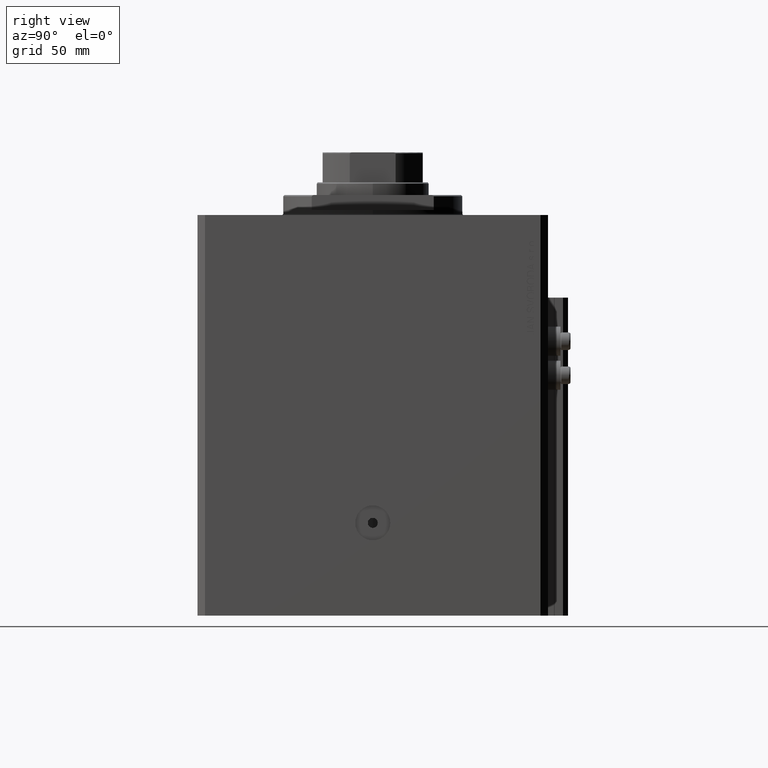
[diagram: clean part render]
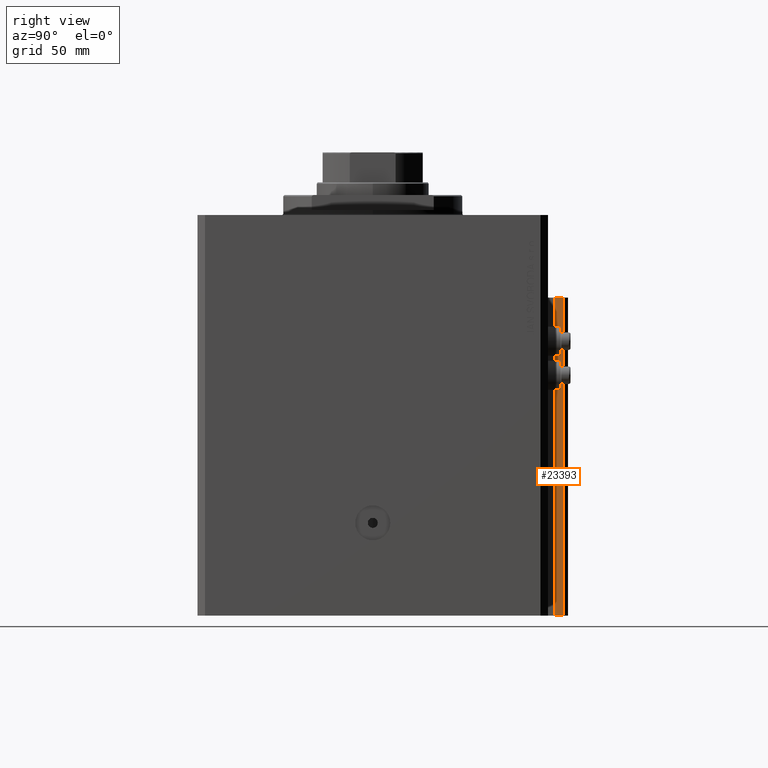
[diagram: same view with one face highlighted and labeled with its STEP entity id]
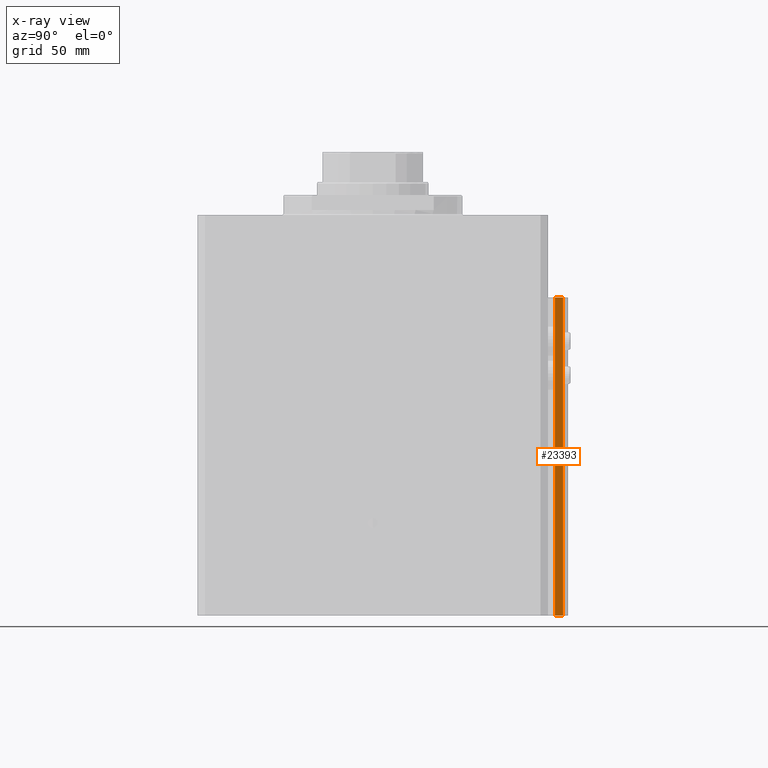
[diagram: x-ray of the same camera — body ghosted, the highlighted face saturated]
A machine part, right view. The second image highlights one B-rep face of the part: STEP entity #23393.
The next image is the same camera in x-ray: the body ghosted, the highlighted face saturated — about 0% of this face is hidden behind the body in this view.
In plain terms, the highlighted planar face has unit normal (1, 0, 0).
Its self-contained STEP definition (entity closure, byte-faithful):
#268 = DIRECTION ( 'NONE',  ( 0.000000000000000000, 0.000000000000000000, 1.000000000000000000 ) ) ;
#3732 = CARTESIAN_POINT ( 'NONE',  ( 11.99999999999999822, 72.70000000000003126, -160.0000000000000000 ) ) ;
#4007 = EDGE_CURVE ( 'NONE', #31802, #43293, #38487, .T. ) ;
#4839 = VECTOR ( 'NONE', #38246, 1000.000000000000000 ) ;
#7224 = ORIENTED_EDGE ( 'NONE', *, *, #45904, .T. ) ;
#7361 = VERTEX_POINT ( 'NONE', #3732 ) ;
#7511 = EDGE_CURVE ( 'NONE', #9630, #43293, #19719, .T. ) ;
#9630 = VERTEX_POINT ( 'NONE', #32788 ) ;
#9908 = CARTESIAN_POINT ( 'NONE',  ( 12.00000000000000000, 76.00000000000002842, -160.0000000000000000 ) ) ;
#10839 = CARTESIAN_POINT ( 'NONE',  ( 12.00000000000000178, 72.70000000000003126, -160.0000000000000000 ) ) ;
#12598 = ORIENTED_EDGE ( 'NONE', *, *, #7511, .T. ) ;
#16519 = EDGE_CURVE ( 'NONE', #7361, #31802, #40366, .T. ) ;
#17782 = DIRECTION ( 'NONE',  ( -5.256737805990328981E-16, 1.000000000000000000, 0.000000000000000000 ) ) ;
#18295 = VECTOR ( 'NONE', #268, 1000.000000000000000 ) ;
#19586 = FACE_OUTER_BOUND ( 'NONE', #21014, .T. ) ;
#19719 = LINE ( 'NONE', #9908, #24148 ) ;
#19834 = CARTESIAN_POINT ( 'NONE',  ( 12.00000000000000178, 72.70000000000003126, -160.0000000000000000 ) ) ;
#19835 = ORIENTED_EDGE ( 'NONE', *, *, #4007, .F. ) ;
#21014 = EDGE_LOOP ( 'NONE', ( #19835, #46792, #7224, #12598 ) ) ;
#23393 = ADVANCED_FACE ( 'NONE', ( #19586 ), #44624, .T. ) ;
#24148 = VECTOR ( 'NONE', #24496, 1000.000000000000000 ) ;
#24496 = DIRECTION ( 'NONE',  ( 0.000000000000000000, 0.000000000000000000, 1.000000000000000000 ) ) ;
#24722 = CARTESIAN_POINT ( 'NONE',  ( 11.99999999999999822, 72.70000000000003126, -33.00000000000000000 ) ) ;
#25182 = LINE ( 'NONE', #10839, #38358 ) ;
#27980 = CARTESIAN_POINT ( 'NONE',  ( 12.00000000000000000, 76.00000000000002842, -33.00000000000000000 ) ) ;
#31802 = VERTEX_POINT ( 'NONE', #24722 ) ;
#32788 = CARTESIAN_POINT ( 'NONE',  ( 12.00000000000000000, 76.00000000000002842, -160.0000000000000000 ) ) ;
#33878 = DIRECTION ( 'NONE',  ( 1.000000000000000000, 5.256737805990328981E-16, -0.000000000000000000 ) ) ;
#35369 = CARTESIAN_POINT ( 'NONE',  ( 12.00000000000000178, 72.70000000000003126, -33.00000000000000000 ) ) ;
#36096 = CARTESIAN_POINT ( 'NONE',  ( 11.99999999999999822, 72.70000000000003126, -160.0000000000000000 ) ) ;
#38246 = DIRECTION ( 'NONE',  ( -5.256737805990328981E-16, 1.000000000000000000, 0.000000000000000000 ) ) ;
#38358 = VECTOR ( 'NONE', #17782, 1000.000000000000000 ) ;
#38487 = LINE ( 'NONE', #35369, #4839 ) ;
#40208 = AXIS2_PLACEMENT_3D ( 'NONE', #19834, #33878, #45340 ) ;
#40366 = LINE ( 'NONE', #36096, #18295 ) ;
#43293 = VERTEX_POINT ( 'NONE', #27980 ) ;
#44624 = PLANE ( 'NONE',  #40208 ) ;
#45340 = DIRECTION ( 'NONE',  ( -5.256737805990328981E-16, 1.000000000000000000, 0.000000000000000000 ) ) ;
#45904 = EDGE_CURVE ( 'NONE', #7361, #9630, #25182, .T. ) ;
#46792 = ORIENTED_EDGE ( 'NONE', *, *, #16519, .F. ) ;